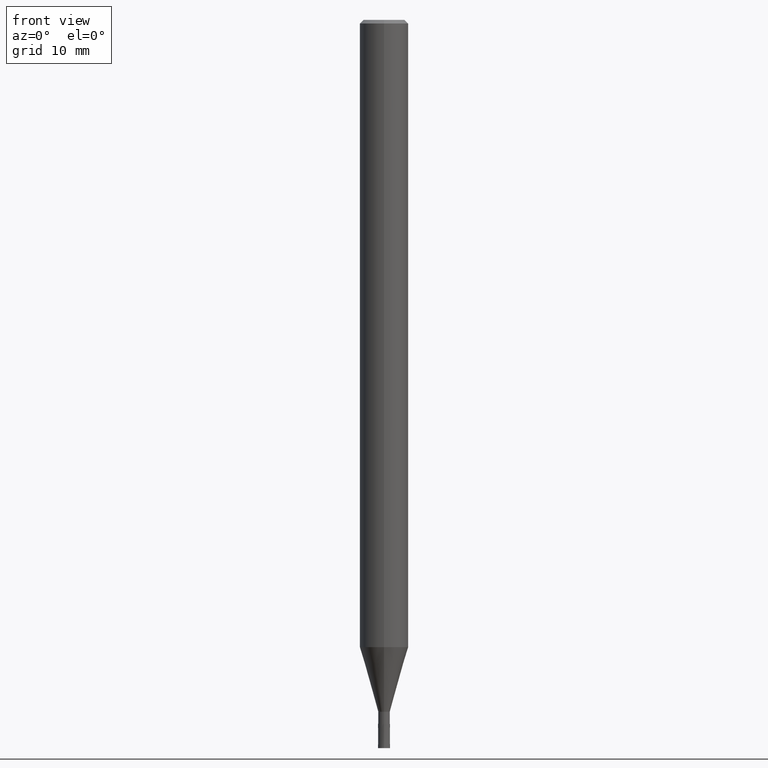
[diagram: clean part render]
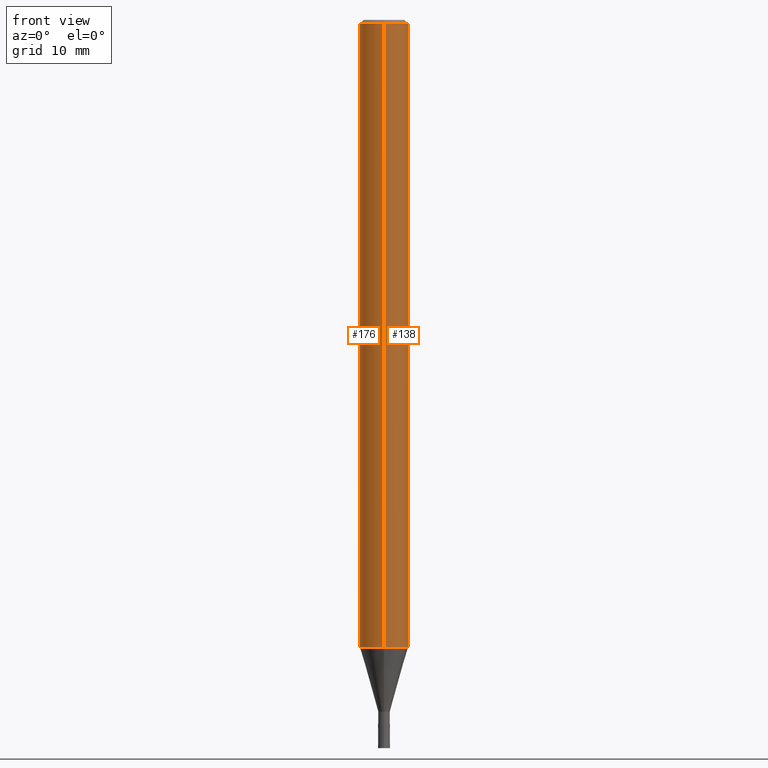
[diagram: same view with one multi-face feature highlighted, each face labeled with its STEP entity id]
A machine part, front view. The highlighted faces form ONE feature: a constant-radius fillet chain: 2 tangent blend faces with common blend radius 2 mm. The faces share edges in the B-rep.
Their STEP definitions:
[1] entity #176 (Cylinder):
#114=EDGE_CURVE('',#124,#148,#254,.T.);
#124=VERTEX_POINT('',#265);
#126=VERTEX_POINT('',#267);
#148=VERTEX_POINT('',#293);
#150=EDGE_CURVE('',#124,#160,#295,.T.);
#160=VERTEX_POINT('',#306);
#176=ADVANCED_FACE('',(#324),#325,.T.);
#180=EDGE_CURVE('',#148,#126,#329,.T.);
#186=EDGE_CURVE('',#126,#160,#335,.T.);
#254=LINE('',#405,#406);
#265=CARTESIAN_POINT('',(2.44921270764475E-016,-2.0,-51.682));
#267=CARTESIAN_POINT('',(0.0,2.0,-0.299999999999997));
#293=CARTESIAN_POINT('',(2.44921270764475E-016,-2.0,-0.299999999999997));
#295=CIRCLE('',#451,2.0);
#306=CARTESIAN_POINT('',(0.0,2.0,-51.682));
#324=FACE_OUTER_BOUND('',#487,.T.);
#325=CYLINDRICAL_SURFACE('',#488,2.0);
#329=CIRCLE('',#494,2.0);
#335=LINE('',#504,#505);
#405=CARTESIAN_POINT('',(2.44921270764475E-016,-2.0,-25.991));
#406=VECTOR('',#577,1.0);
#451=AXIS2_PLACEMENT_3D('',#622,#623,#624);
#487=EDGE_LOOP('',(#654,#655,#656,#657));
#488=AXIS2_PLACEMENT_3D('',#658,#659,#660);
#494=AXIS2_PLACEMENT_3D('',#664,#665,#666);
#504=CARTESIAN_POINT('',(-2.44921270764475E-016,2.0,-25.991));
#505=VECTOR('',#671,1.0);
#577=DIRECTION('',(-0.0,-0.0,1.0));
#622=CARTESIAN_POINT('',(0.0,0.0,-51.682));
#623=DIRECTION('',(0.0,0.0,-1.0));
#624=DIRECTION('',(0.0,1.0,0.0));
#654=ORIENTED_EDGE('',*,*,#186,.T.);
#655=ORIENTED_EDGE('',*,*,#150,.F.);
#656=ORIENTED_EDGE('',*,*,#114,.T.);
#657=ORIENTED_EDGE('',*,*,#180,.T.);
#658=CARTESIAN_POINT('',(0.0,0.0,-25.991));
#659=DIRECTION('',(-0.0,-0.0,1.0));
#660=DIRECTION('',(0.0,1.0,0.0));
#664=CARTESIAN_POINT('',(0.0,0.0,-0.299999999999997));
#665=DIRECTION('',(0.0,0.0,-1.0));
#666=DIRECTION('',(0.0,1.0,0.0));
#671=DIRECTION('',(0.0,0.0,-1.0));
[2] entity #138 (Cylinder):
#110=EDGE_CURVE('',#160,#124,#250,.T.);
#114=EDGE_CURVE('',#124,#148,#254,.T.);
#124=VERTEX_POINT('',#265);
#126=VERTEX_POINT('',#267);
#138=ADVANCED_FACE('',(#280),#281,.T.);
#148=VERTEX_POINT('',#293);
#160=VERTEX_POINT('',#306);
#178=EDGE_CURVE('',#126,#148,#327,.T.);
#186=EDGE_CURVE('',#126,#160,#335,.T.);
#250=CIRCLE('',#400,2.0);
#254=LINE('',#405,#406);
#265=CARTESIAN_POINT('',(2.44921270764475E-016,-2.0,-51.682));
#267=CARTESIAN_POINT('',(0.0,2.0,-0.299999999999997));
#280=FACE_OUTER_BOUND('',#433,.T.);
#281=CYLINDRICAL_SURFACE('',#434,2.0);
#293=CARTESIAN_POINT('',(2.44921270764475E-016,-2.0,-0.299999999999997));
#306=CARTESIAN_POINT('',(0.0,2.0,-51.682));
#327=CIRCLE('',#491,2.0);
#335=LINE('',#504,#505);
#400=AXIS2_PLACEMENT_3D('',#574,#575,#576);
#405=CARTESIAN_POINT('',(2.44921270764475E-016,-2.0,-25.991));
#406=VECTOR('',#577,1.0);
#433=EDGE_LOOP('',(#601,#602,#603,#604));
#434=AXIS2_PLACEMENT_3D('',#605,#606,#607);
#491=AXIS2_PLACEMENT_3D('',#661,#662,#663);
#504=CARTESIAN_POINT('',(-2.44921270764475E-016,2.0,-25.991));
#505=VECTOR('',#671,1.0);
#574=CARTESIAN_POINT('',(0.0,0.0,-51.682));
#575=DIRECTION('',(0.0,0.0,-1.0));
#576=DIRECTION('',(0.0,1.0,0.0));
#577=DIRECTION('',(-0.0,-0.0,1.0));
#601=ORIENTED_EDGE('',*,*,#186,.F.);
#602=ORIENTED_EDGE('',*,*,#178,.T.);
#603=ORIENTED_EDGE('',*,*,#114,.F.);
#604=ORIENTED_EDGE('',*,*,#110,.F.);
#605=CARTESIAN_POINT('',(0.0,0.0,-25.991));
#606=DIRECTION('',(-0.0,-0.0,1.0));
#607=DIRECTION('',(0.0,1.0,0.0));
#661=CARTESIAN_POINT('',(0.0,0.0,-0.299999999999997));
#662=DIRECTION('',(0.0,0.0,-1.0));
#663=DIRECTION('',(0.0,1.0,0.0));
#671=DIRECTION('',(0.0,0.0,-1.0));